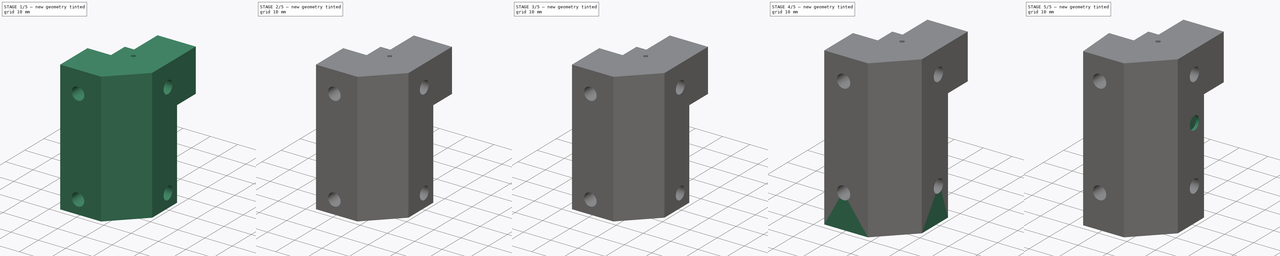
[diagram: build sequence overview — one tinted view per stage of 5, left to right]
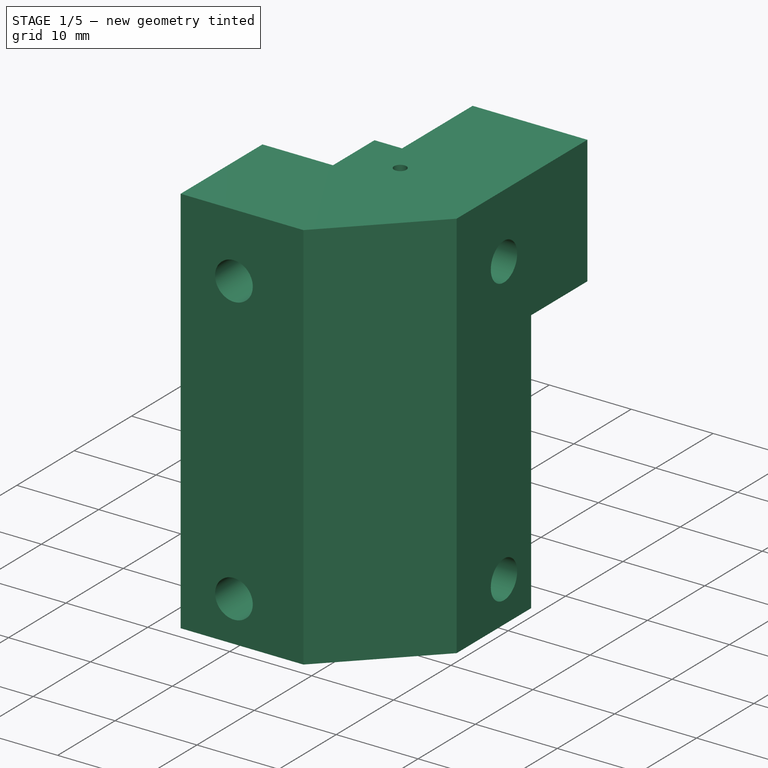
[diagram: stage 1 of 5 — iso view after this stage's code; geometry added in this stage tinted green]
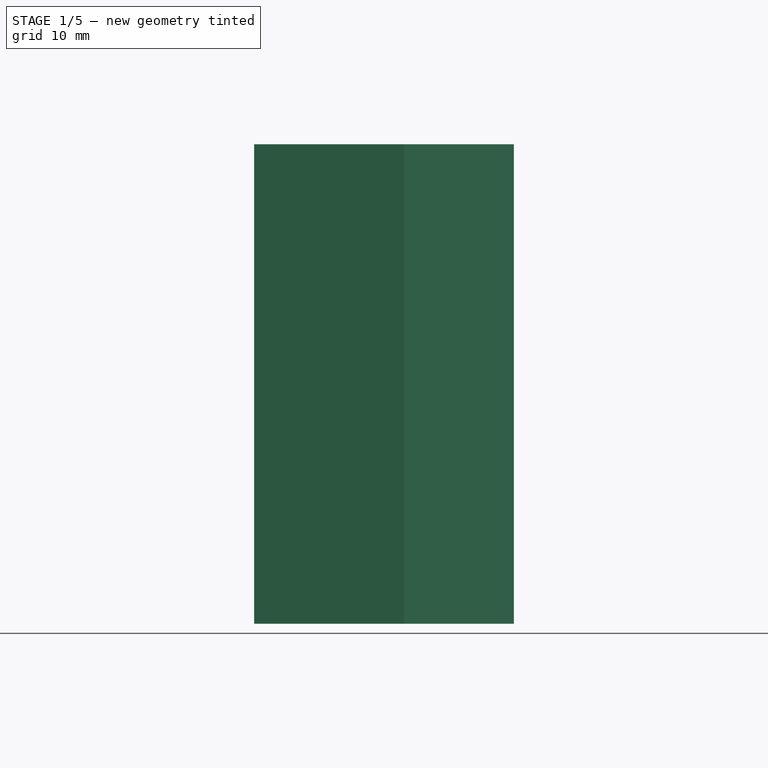
[diagram: stage 1 of 5 — front view after this stage's code; geometry added in this stage tinted green]
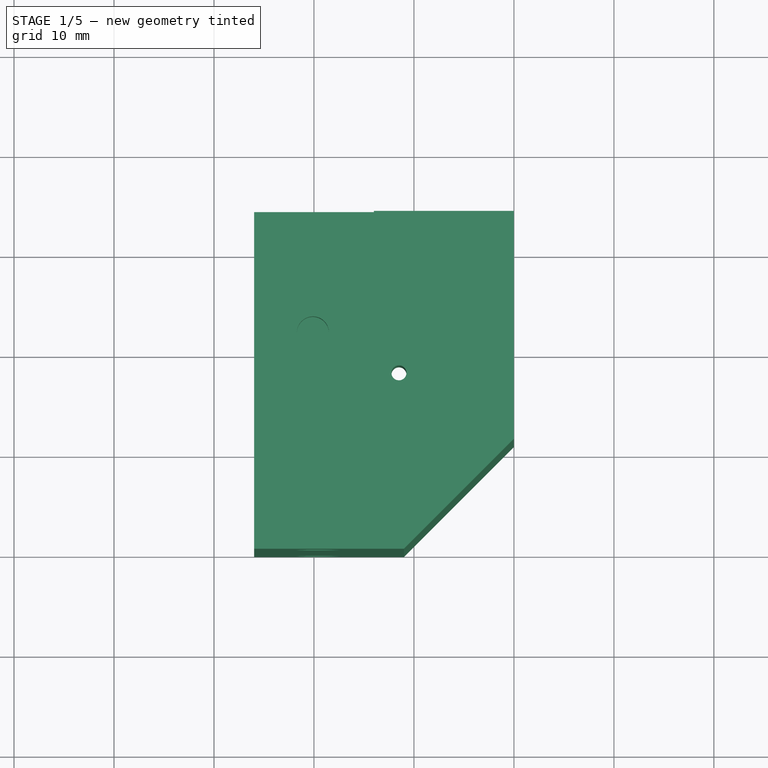
[diagram: stage 1 of 5 — top view after this stage's code; geometry added in this stage tinted green]
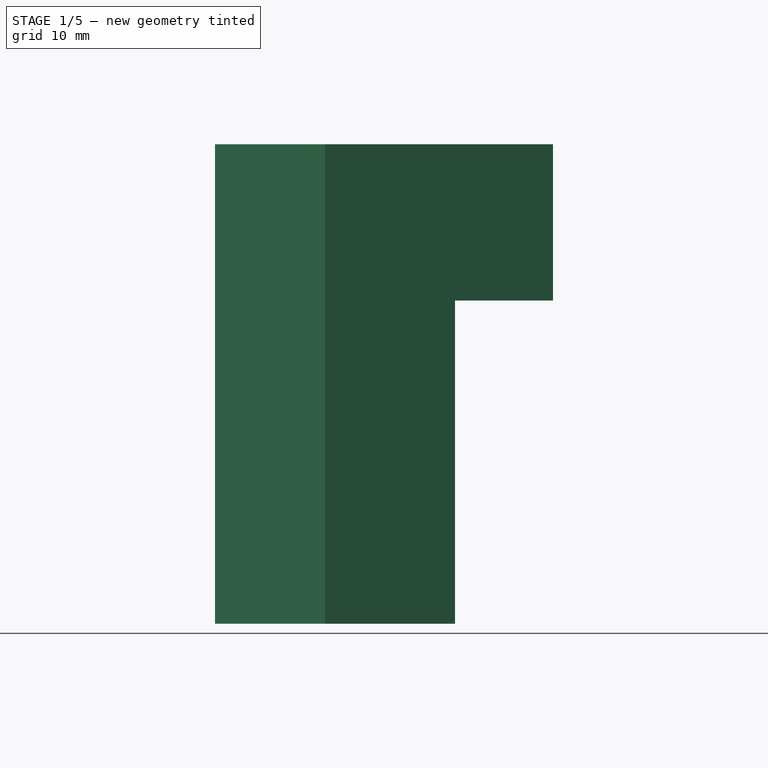
[diagram: stage 1 of 5 — right view after this stage's code; geometry added in this stage tinted green]
FCSTD DOCUMENT  (FreeCAD 1.0R38641 +468 (Git))
Label: k1_front_idler_right
License: All rights reserved
LicenseURL: https://en.wikipedia.org/wiki/All_rights_reserved
objects: PartDesign::Pad×11, PartDesign::Pocket×9, Sketcher::SketchObject×8, PartDesign::Line×2, App::Link×2, Part::Feature×1, PartDesign::FeatureBase×1, PartDesign::Body×1, App::Part×1
note: 82 computed .brp shape members not serialized (recipe doc carries the construction recipe); baked Part::Feature solids carry a one-line shape summary decoded from their .brp
EXTERNAL_REF file=cad_powge_pulley.FCStd obj=Part
EXTERNAL_REF file=cad_M4_DIN912_30mm.FCStd obj=Body

FEATURE [Part::Feature] Part__Feature  label="step"
  shape: bbox 25.99 x 33.8 x 47.95 mm, 40 faces (baked)
FEATURE [PartDesign::FeatureBase] BaseFeature
  BaseFeature = -> Part__Feature
  Suppressed = false
FEATURE [PartDesign::Line] HoleAxis_1  label="HoleAxis_frame"
  AttacherType = Attacher::AttachEngineLine
  AttachmentSupport = -> [BaseFeature]
  Length = 6.48171
  MapMode = 19
  Placement = pos=(-19.485,0,40.055) rot=(1,0,0;1.5708rad)
  ResizeMode = 1
FEATURE [Sketcher::SketchObject] Sketch
  ArcFitTolerance = 1e-06
  AttachmentSupport = -> [BaseFeature]
  ExternalGeometry = -> [BaseFeature]
  FullyConstrained = true
  MakeInternals = false
  MapMode = 5
  Placement = pos=(0,0,36) rot=(1,0,0;3.14159rad)
  sketch-geometry (1):
    g0: Circle CenterX=-11.5 CenterY=-17.6 CenterZ=0 NormalX=0 NormalY=0 NormalZ=1 AngleXU=0 Radius=0.75
  constraints (2):
    c: Coincident(g0,g-3)
    c: Diameter(g0) = 1.5
FEATURE [PartDesign::Pocket] Pocket
  BaseFeature = -> BaseFeature
  Direction = (0,0,1)
  Length = 5
  Length2 = 5
  Profile = -> Sketch
  ReferenceAxis = -> Sketch [N_Axis]
  Refine = true
  Suppressed = false
  Type = 1
FEATURE [PartDesign::Pocket] Pocket001
  BaseFeature = -> Pocket
  Direction = (0,0,-1)
  Length = 0.725
  Length2 = 5
  Profile = -> Pocket [Face18]
  Refine = true
  Suppressed = false
  Type = 0
FEATURE [PartDesign::Pad] Pad
  BaseFeature = -> Pocket001
  Direction = (0,0,-1)
  Length = 0.725
  Length2 = 10
  Profile = -> Pocket001 [Face34]
  Refine = true
  Suppressed = false
  Type = 0
FEATURE [PartDesign::Body] Body  label="k1_front_idler_right"
  AllowCompound = false
  BaseFeature = -> Part__Feature
  Group = -> [BaseFeature,HoleAxis_1,Sketch,Pocket,Pocket001,Pad,Pad001,Pocket002,Pad002,DatumLine,Pad003,Pad004,Pad005,Sketch001,Pocket003,Sketch002,Pocket004,Sketch003,Pocket005,Pad006,Sketch004,Pad007,Sketch005,Pad008,Pocket006,Pad009,Pad010,Sketch006,Pocket007,Sketch007,Pocket008]
  Origin = -> Origin
  Tip = -> Pocket008
FEATURE [App::Part] Part  label="k1_front_idler_right_part"
  Group = -> [Part__Feature,Body,Link,Link001]
  Origin = -> Origin001
  Placement = pos=(0,0,0) rot=(0,0,1;3.14159rad)

RESOLVED EXTERNAL PARTS (link-assembly join: the EXTERNAL_REF files above that resolve inside this repo's crawl, each included once):
---- part cad_M4_DIN912_30mm.FCStd = doc fcstd_a8421640b679 ----
FCSTD DOCUMENT  (FreeCAD 1.0R38641 +468 (Git))
Label: cad_M4_DIN912_30mm
License: All rights reserved
LicenseURL: https://en.wikipedia.org/wiki/All_rights_reserved
objects: Sketcher::SketchObject×2, PartDesign::Revolution×1, PartDesign::Pocket×1, PartDesign::Body×1
note: 11 computed .brp shape members not serialized (recipe doc carries the construction recipe); baked Part::Feature solids carry a one-line shape summary decoded from their .brp

FEATURE [Sketcher::SketchObject] Sketch
  ArcFitTolerance = 1e-06
  AttachmentSupport = -> [YZ_Plane]
  FullyConstrained = true
  MakeInternals = false
  MapMode = 5
  Placement = pos=(0,0,0) rot=(0.57735,0.57735,0.57735;2.0944rad)
  sketch-geometry (6):
    g0: LineSegment StartX=-3.5 StartY=4 StartZ=0 EndX=-3.5 EndY=0 EndZ=0
    g1: LineSegment StartX=-3.5 StartY=0 StartZ=0 EndX=0 EndY=0 EndZ=0
    g2: LineSegment StartX=-3.5 StartY=4 StartZ=0 EndX=-2 EndY=4 EndZ=0
    g3: LineSegment StartX=-2 StartY=4 StartZ=0 EndX=-2 EndY=34 EndZ=0
    g4: LineSegment StartX=-2 StartY=34 StartZ=0 EndX=0 EndY=34 EndZ=0
    g5: LineSegment StartX=0 StartY=34 StartZ=0 EndX=0 EndY=0 EndZ=0
  constraints (17):
    c: PointOnObject(g0,g-1)
    c: Vertical(g0)
    c: Coincident(g1,g0)
    c: Coincident(g2,g0)
    c: Horizontal(g2)
    c: Coincident(g3,g2)
    c: Vertical(g3)
    c: Coincident(g4,g3)
    c: Horizontal(g4)
    c: Distance(g0,g0) = 4
    c: Distance(g3,g3) = 30
    c: PointOnObject(g4,g-2)
    c: Coincident(g1,g-1)
    c: Distance(g1,g1) = 3.5
    c: Distance(g4,g4) = 2
    c: Coincident(g5,g4)
    c: Coincident(g5,g1)
FEATURE [PartDesign::Revolution] Revolution
  Angle = 360
  Angle2 = 60
  Axis = (0,0,1)
  Base = (0,0,0)
  Placement = pos=(0,0,0) rot=(1,1,1;2.0944rad)
  Profile = -> Sketch
  ReferenceAxis = -> Sketch [V_Axis]
  Refine = true
  Suppressed = false
  Type = 0
FEATURE [Sketcher::SketchObject] Sketch001
  ArcFitTolerance = 1e-06
  AttachmentSupport = -> [Revolution]
  FullyConstrained = true
  MakeInternals = false
  MapMode = 5
  Placement = pos=(0,0,8e-16) rot=(0.707107,0.707107,0;3.14159rad)
  sketch-geometry (7):
    g0: LineSegment StartX=0 StartY=2.5 StartZ=0 EndX=-2.16506 EndY=1.25 EndZ=0
    g1: LineSegment StartX=-2.16506 StartY=1.25 StartZ=0 EndX=-2.16506 EndY=-1.25 EndZ=0
    g2: LineSegment StartX=-2.16506 StartY=-1.25 StartZ=0 EndX=-6.3047e-12 EndY=-2.5 EndZ=0
    g3: LineSegment StartX=-6.3047e-12 StartY=-2.5 StartZ=0 EndX=2.16506 EndY=-1.25 EndZ=0
    g4: LineSegment StartX=2.16506 StartY=-1.25 StartZ=0 EndX=2.16506 EndY=1.25 EndZ=0
    g5: LineSegment StartX=2.16506 StartY=1.25 StartZ=0 EndX=0 EndY=2.5 EndZ=0
    g6: Circle [constr] CenterX=0 CenterY=0 CenterZ=0 NormalX=0 NormalY=0 NormalZ=1 AngleXU=0 Radius=2.5
  constraints (16):
    c: Coincident(g0,g1)
    c: Coincident(g1,g2)
    c: Coincident(g2,g3)
    c: Coincident(g3,g4)
    c: Coincident(g4,g5)
    c: Coincident(g5,g0)
    c: Equal(g0, g1-g5) x5
    c: PointOnObject(g0,g6)
    c: PointOnObject(g1,g6)
    c: PointOnObject(g2,g6)
    c: PointOnObject(g3,g6)
    c: PointOnObject(g4,g6)
    c: PointOnObject(g5,g6)
    c: Coincident(g6,g-1)
    c: PointOnObject(g5,g-2)
    c: Diameter(g6) = 5
FEATURE [PartDesign::Pocket] Pocket
  BaseFeature = -> Revolution
  Direction = (0,0,1)
  Length = 2
  Length2 = 5
  Placement = pos=(0,0,0) rot=(1,1,1;2.0944rad)
  Profile = -> Sketch001
  ReferenceAxis = -> Sketch001 [N_Axis]
  Refine = true
  Suppressed = false
  Type = 0
FEATURE [PartDesign::Body] Body  label="cad_M4_DIN912_30mm"
  AllowCompound = false
  Group = -> [Sketch,Revolution,Sketch001,Pocket]
  Origin = -> Origin
  Tip = -> Pocket
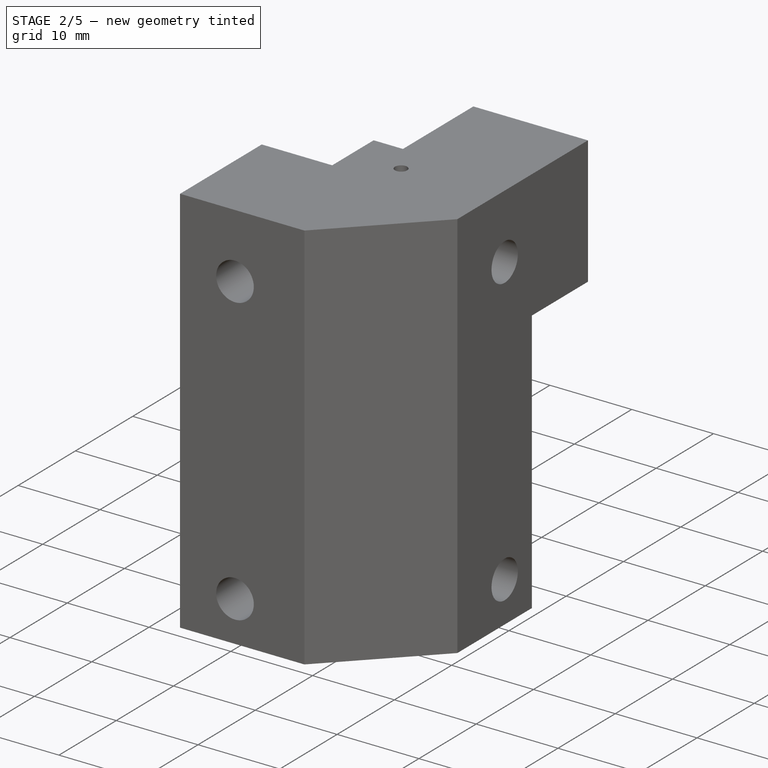
[diagram: stage 2 of 5 — iso view after this stage's code; geometry added in this stage tinted green]
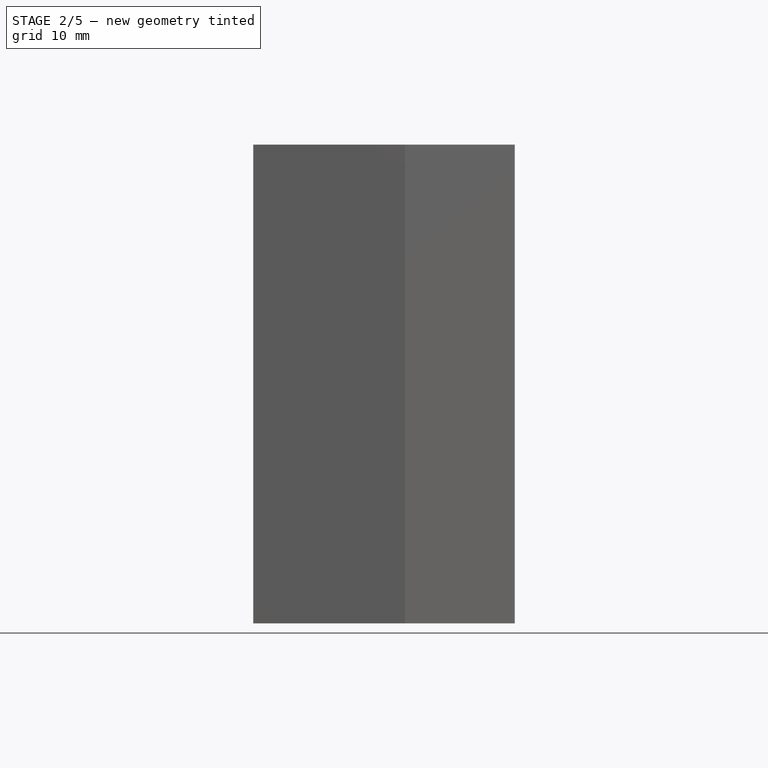
[diagram: stage 2 of 5 — front view after this stage's code; geometry added in this stage tinted green]
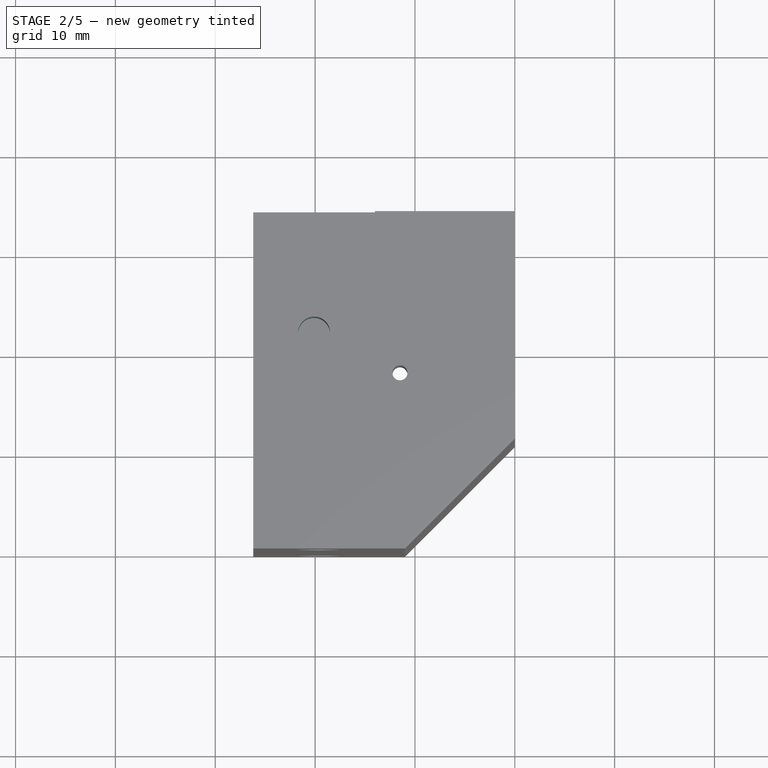
[diagram: stage 2 of 5 — top view after this stage's code; geometry added in this stage tinted green]
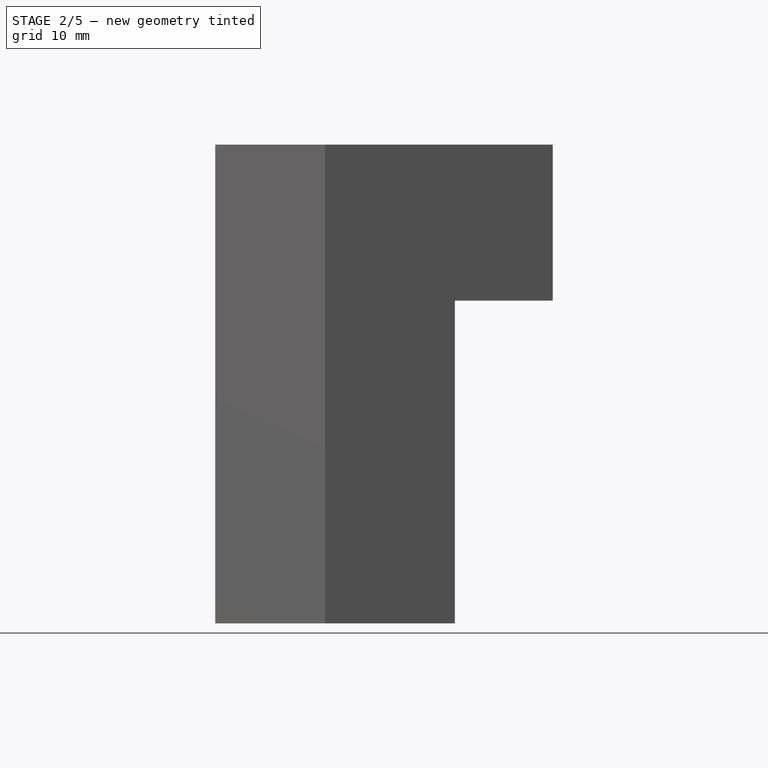
[diagram: stage 2 of 5 — right view after this stage's code; geometry added in this stage tinted green]
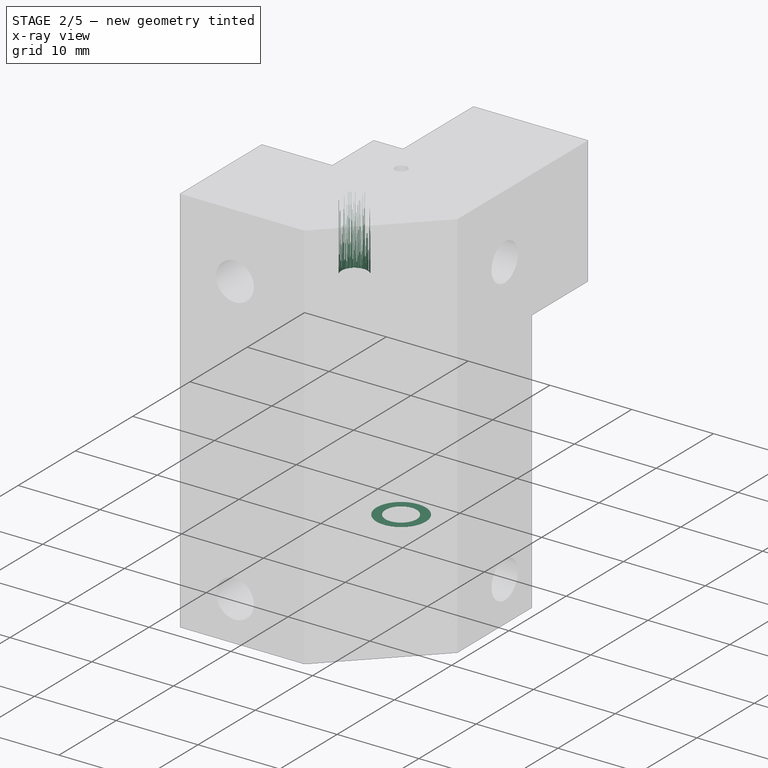
[diagram: stage 2 of 5 — x-ray composite at the iso view; earlier geometry ghosted, this stage's added geometry solid]
FEATURE [PartDesign::Pad] Pad001
  BaseFeature = -> Pad
  Direction = (0,0,-1)
  Length = 0.725
  Length2 = 10
  Profile = -> Pad [Face20]
  Refine = true
  Suppressed = false
  Type = 0
FEATURE [PartDesign::Pocket] Pocket002
  BaseFeature = -> Pad001
  Direction = (0,0,-1)
  Length = 0.725
  Length2 = 5
  Profile = -> Pad001 [Face29]
  Refine = true
  Suppressed = false
  Type = 0
FEATURE [PartDesign::Pad] Pad002
  BaseFeature = -> Pocket002
  Direction = (-1,0,0)
  Length = 0.21
  Length2 = 10
  Profile = -> Pocket002 [Face4]
  Refine = true
  Suppressed = false
  Type = 0
FEATURE [PartDesign::Line] DatumLine
  AttacherType = Attacher::AttachEngineLine
  AttachmentOffset = pos=(0,0.6,0) rot=(0,0,1;0rad)
  AttachmentSupport = -> [Pad002]
  Length = 20
  MapMode = 19
  Placement = pos=(-20.105,22.365,40.945) rot=(0,0,1;0rad)
  ResizeMode = 0
FEATURE [PartDesign::Pad] Pad003
  BaseFeature = -> Pad002
  Direction = (0,0,-1)
  Length = 10
  Length2 = 10
  Profile = -> Pad002 [Face37]
  Refine = true
  Suppressed = false
  Type = 3
  UpToFace = -> Pad002 [Face35]
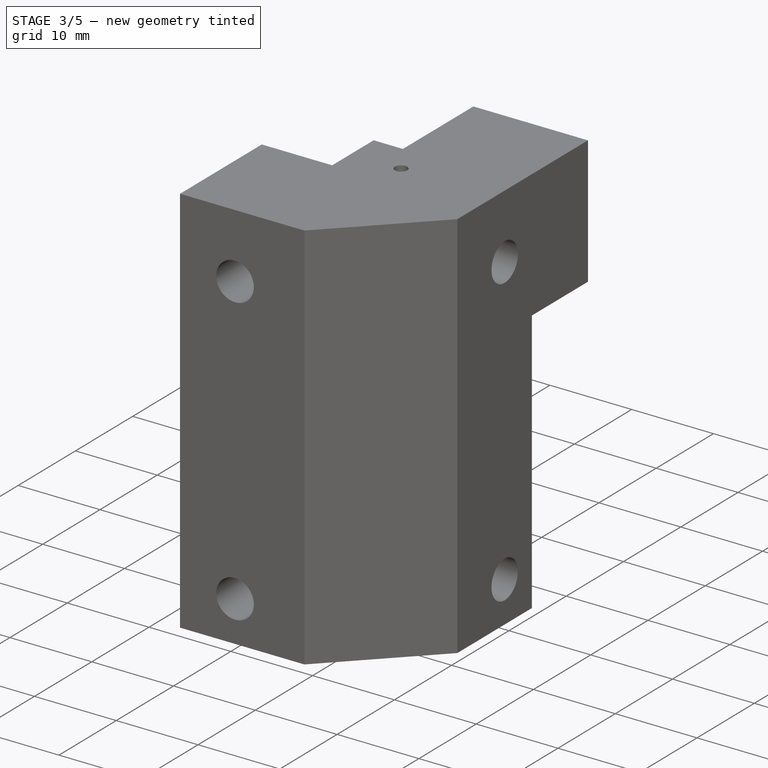
[diagram: stage 3 of 5 — iso view after this stage's code; geometry added in this stage tinted green]
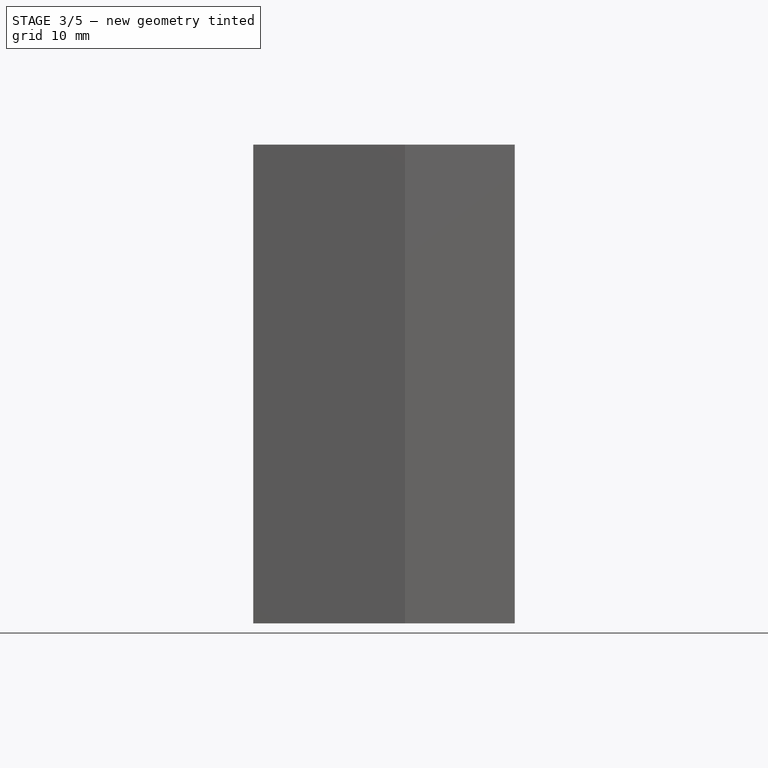
[diagram: stage 3 of 5 — front view after this stage's code; geometry added in this stage tinted green]
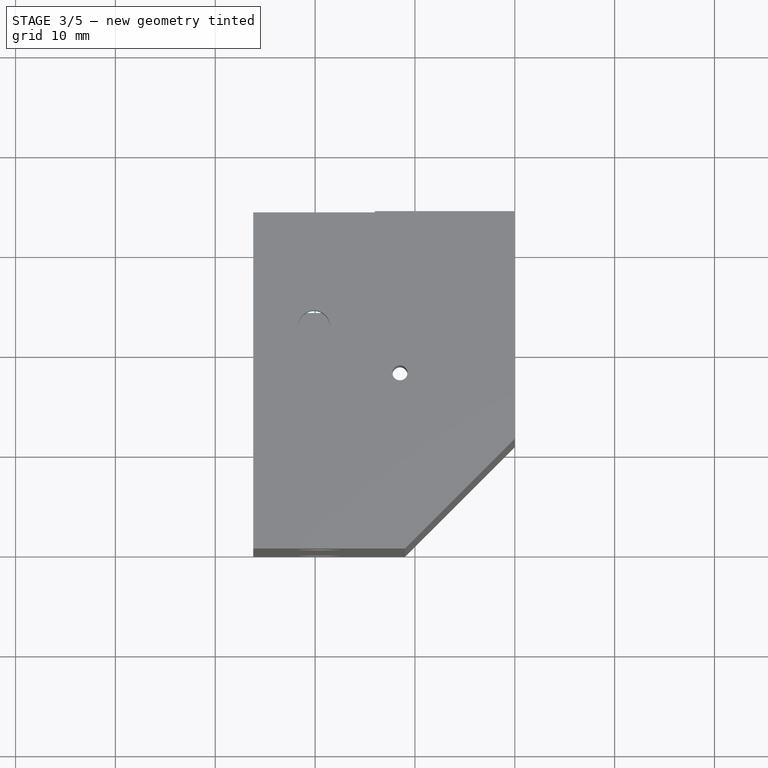
[diagram: stage 3 of 5 — top view after this stage's code; geometry added in this stage tinted green]
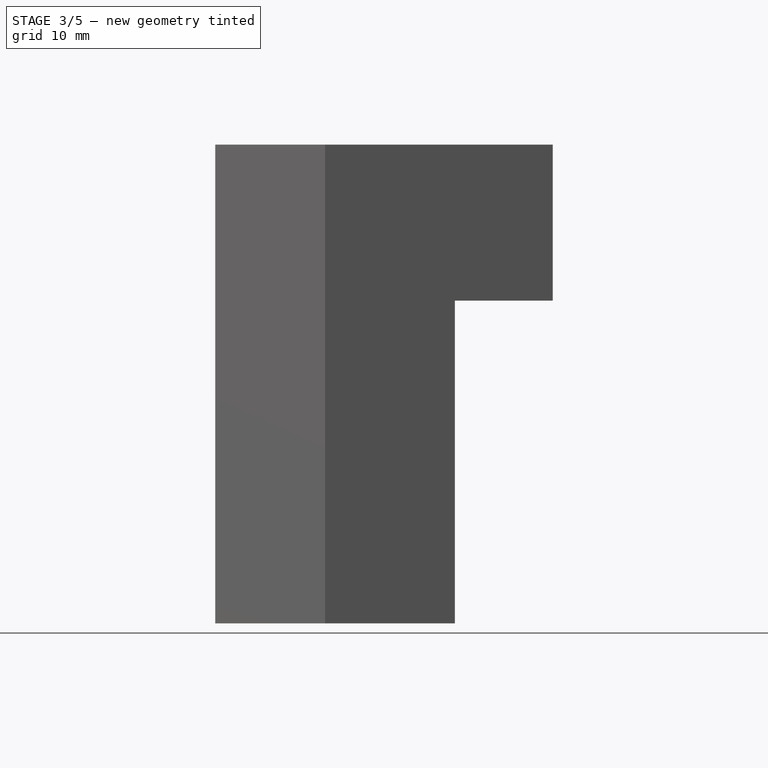
[diagram: stage 3 of 5 — right view after this stage's code; geometry added in this stage tinted green]
FEATURE [PartDesign::Pad] Pad004
  BaseFeature = -> Pad003
  Direction = (0,0,1)
  Length = 10
  Length2 = 10
  Profile = -> Pad003 [Edge84]
  Refine = true
  Suppressed = false
  Type = 3
  UpToFace = -> Pad003 [Face17]
FEATURE [PartDesign::Pad] Pad005
  BaseFeature = -> Pad004
  Direction = (0,0,1)
  Length = 10
  Length2 = 10
  Profile = -> Pad004 [Face20]
  Refine = true
  Suppressed = false
  Type = 3
  UpToFace = -> Pad004 [Face37]
FEATURE [Sketcher::SketchObject] Sketch001
  ArcFitTolerance = 1e-06
  AttachmentSupport = -> [Pad005]
  ExternalGeometry = -> [DatumLine]
  FullyConstrained = true
  MakeInternals = false
  MapMode = 5
  Placement = pos=(0,0,40.945) rot=(0,0,1;0rad)
  sketch-geometry (1):
    g0: Circle CenterX=-20.105 CenterY=22.365 CenterZ=0 NormalX=0 NormalY=0 NormalZ=1 AngleXU=0 Radius=1.6
  constraints (2):
    c: Coincident(g0,g-3)
    c: Diameter(g0) = 3.2
FEATURE [PartDesign::Pocket] Pocket003
  BaseFeature = -> Pad005
  Direction = (0,0,-1)
  Length = 0
  Length2 = 5
  Profile = -> Sketch001
  ReferenceAxis = -> Sketch001 [N_Axis]
  Refine = true
  Suppressed = false
  Type = 3
  UpToFace = -> Pad005 [Face18]
FEATURE [Sketcher::SketchObject] Sketch002
  ArcFitTolerance = 1e-06
  AttachmentSupport = -> [Pocket003]
  ExternalGeometry = -> [DatumLine]
  FullyConstrained = true
  MakeInternals = false
  MapMode = 5
  Placement = pos=(0,0,32.325) rot=(1,0,0;3.14159rad)
  sketch-geometry (1):
    g0: Circle CenterX=-20.105 CenterY=-22.365 CenterZ=0 NormalX=0 NormalY=0 NormalZ=1 AngleXU=0 Radius=2.3
  constraints (2):
    c: Coincident(g0,g-3)
    c: Diameter(g0) = 4.6
FEATURE [PartDesign::Pocket] Pocket004
  BaseFeature = -> Pocket003
  Direction = (0,0,1)
  Length = 5.1
  Length2 = 5
  Profile = -> Sketch002
  ReferenceAxis = -> Sketch002 [N_Axis]
  Refine = true
  Suppressed = false
  Type = 0
FEATURE [Sketcher::SketchObject] Sketch003
  ArcFitTolerance = 1e-06
  AttachmentSupport = -> [Pocket004]
  ExternalGeometry = -> [DatumLine,Pocket004]
  FullyConstrained = true
  MakeInternals = false
  MapMode = 5
  Placement = pos=(0,0,32.325) rot=(1,0,0;3.14159rad)
  sketch-geometry (4):
    g0: ArcOfCircle CenterX=-20.105 CenterY=-22.365 CenterZ=0 NormalX=0 NormalY=0 NormalZ=1 AngleXU=0 Radius=4 StartAngle=0 EndAngle=3.14159
    g1: LineSegment StartX=-16.105 StartY=-22.365 StartZ=0 EndX=-16.105 EndY=-24 EndZ=0
    g2: LineSegment StartX=-16.105 StartY=-24 StartZ=0 EndX=-24.105 EndY=-24 EndZ=0
    g3: LineSegment StartX=-24.105 StartY=-24 StartZ=0 EndX=-24.105 EndY=-22.365 EndZ=0
  constraints (10):
    c: Coincident(g0,g-3)
    c: PointOnObject(g1,g-4)
    c: Vertical(g1)
    c: Coincident(g2,g1)
    c: Horizontal(g2)
    c: Coincident(g3,g2)
    c: Vertical(g3)
    c: Radius(g0) = 4
    c: Tangent(g1,g0) = 1.5708
    c: Tangent(g3,g0) = 1.5708
FEATURE [PartDesign::Pocket] Pocket005
  BaseFeature = -> Pocket004
  Direction = (0,0,1)
  Length = 8
  Length2 = 5
  Profile = -> Sketch003
  ReferenceAxis = -> Sketch003 [N_Axis]
  Refine = true
  Reversed = true
  Suppressed = false
  Type = 0
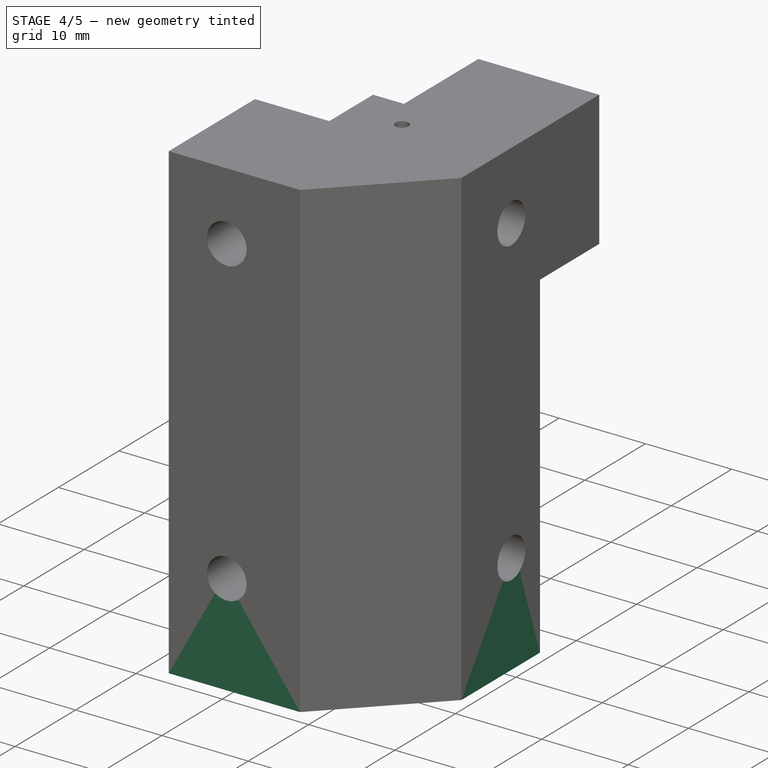
[diagram: stage 4 of 5 — iso view after this stage's code; geometry added in this stage tinted green]
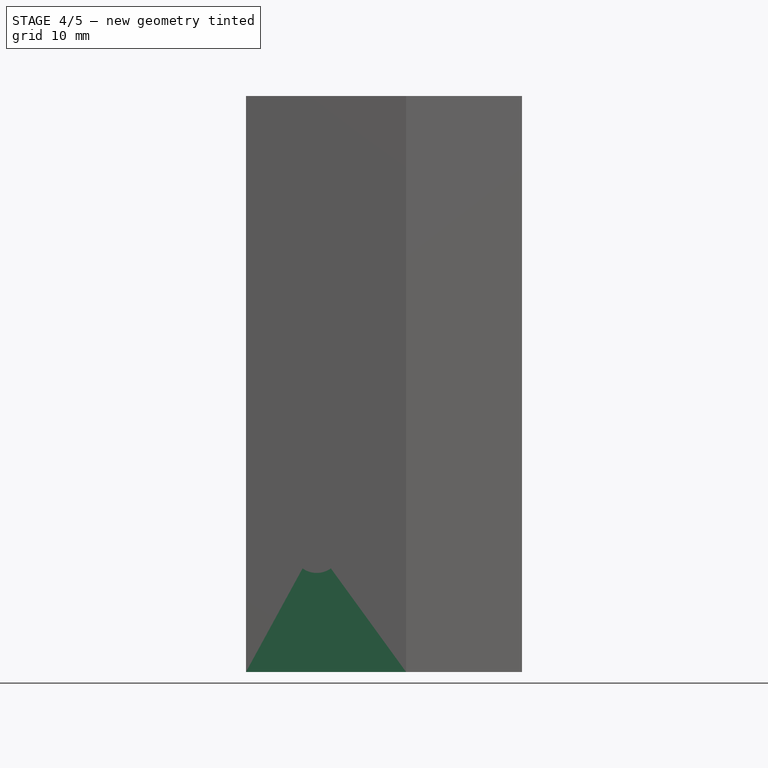
[diagram: stage 4 of 5 — front view after this stage's code; geometry added in this stage tinted green]
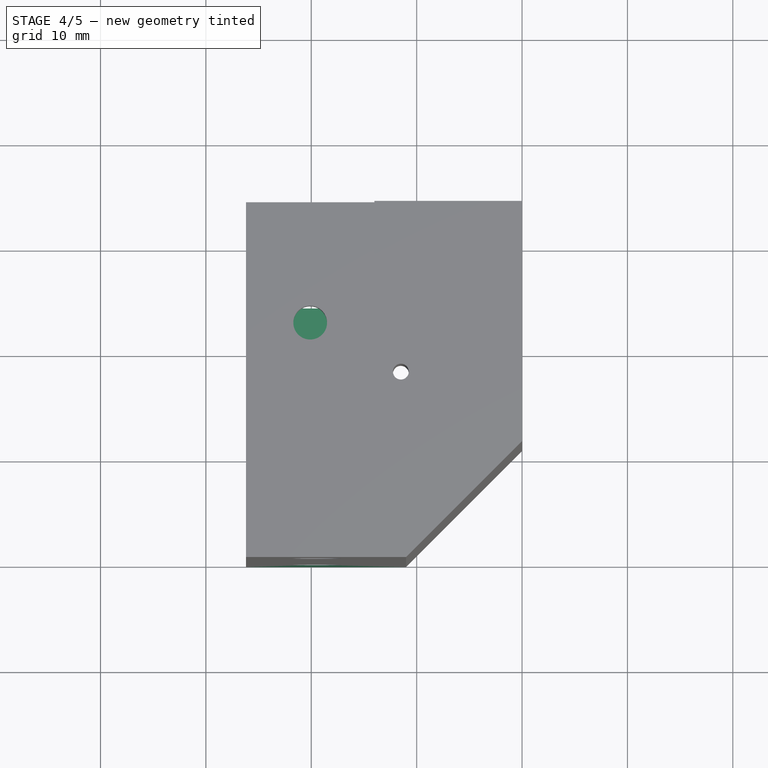
[diagram: stage 4 of 5 — top view after this stage's code; geometry added in this stage tinted green]
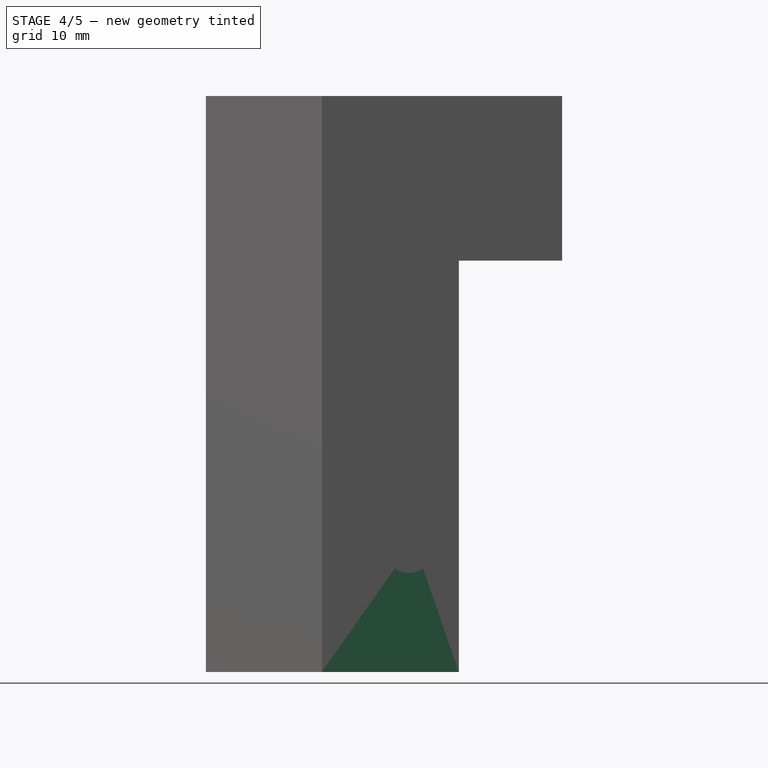
[diagram: stage 4 of 5 — right view after this stage's code; geometry added in this stage tinted green]
FEATURE [PartDesign::Pad] Pad006
  BaseFeature = -> Pocket005
  Direction = (0,0,-1)
  Length = 6.72
  Length2 = 10
  Profile = -> Pocket005 [Face12]
  Refine = true
  Suppressed = false
  Type = 0
FEATURE [Sketcher::SketchObject] Sketch004
  ArcFitTolerance = 1e-06
  AttachmentSupport = -> [Pad006]
  ExternalGeometry = -> [Pad006]
  FullyConstrained = true
  MakeInternals = false
  MapMode = 5
  Placement = pos=(0,0,0.2) rot=(1,0,0;3.14159rad)
  sketch-geometry (2):
    g0: Circle CenterX=-11.5 CenterY=-17.6 CenterZ=0 NormalX=0 NormalY=0 NormalZ=1 AngleXU=0 Radius=4.5
    g1: Circle CenterX=-11.5 CenterY=-17.6 CenterZ=0 NormalX=0 NormalY=0 NormalZ=1 AngleXU=0 Radius=1.9
  constraints (4):
    c: Coincident(g0,g-3)
    c: Equal(g0,g-3)
    c: Coincident(g1,g0)
    c: Diameter(g1) = 3.8
FEATURE [PartDesign::Pad] Pad007
  BaseFeature = -> Pad006
  Direction = (0,0,-1)
  Length = 5
  Length2 = 10
  Profile = -> Sketch004
  ReferenceAxis = -> Sketch004 [N_Axis]
  Refine = true
  Reversed = true
  Suppressed = false
  Type = 0
FEATURE [Sketcher::SketchObject] Sketch005
  ArcFitTolerance = 1e-06
  AttachmentSupport = -> [Pad007]
  ExternalGeometry = -> [Pad007]
  FullyConstrained = true
  MakeInternals = false
  MapMode = 5
  Placement = pos=(0,0,0.2) rot=(1,0,0;3.14159rad)
  sketch-geometry (2):
    g0: Circle CenterX=-11.5 CenterY=-17.6 CenterZ=0 NormalX=0 NormalY=0 NormalZ=1 AngleXU=0 Radius=4.5
    g1: Circle CenterX=-11.5 CenterY=-17.6 CenterZ=0 NormalX=0 NormalY=0 NormalZ=1 AngleXU=0 Radius=3.6
  constraints (4):
    c: Coincident(g0,g-3)
    c: Equal(g0,g-3)
    c: Coincident(g1,g0)
    c: Diameter(g1) = 7.2
FEATURE [PartDesign::Pad] Pad008
  BaseFeature = -> Pad007
  Direction = (0,0,-1)
  Length = 10
  Length2 = 10
  Profile = -> Sketch005
  ReferenceAxis = -> Sketch005 [N_Axis]
  Refine = true
  Suppressed = false
  Type = 3
  UpToFace = -> Pad007 [Face1]
FEATURE [PartDesign::Pocket] Pocket006
  BaseFeature = -> Pad008
  Direction = (0,0,-1)
  Length = 0.3
  Length2 = 5
  Profile = -> Pad008 [Face14]
  Refine = true
  Suppressed = false
  Type = 0
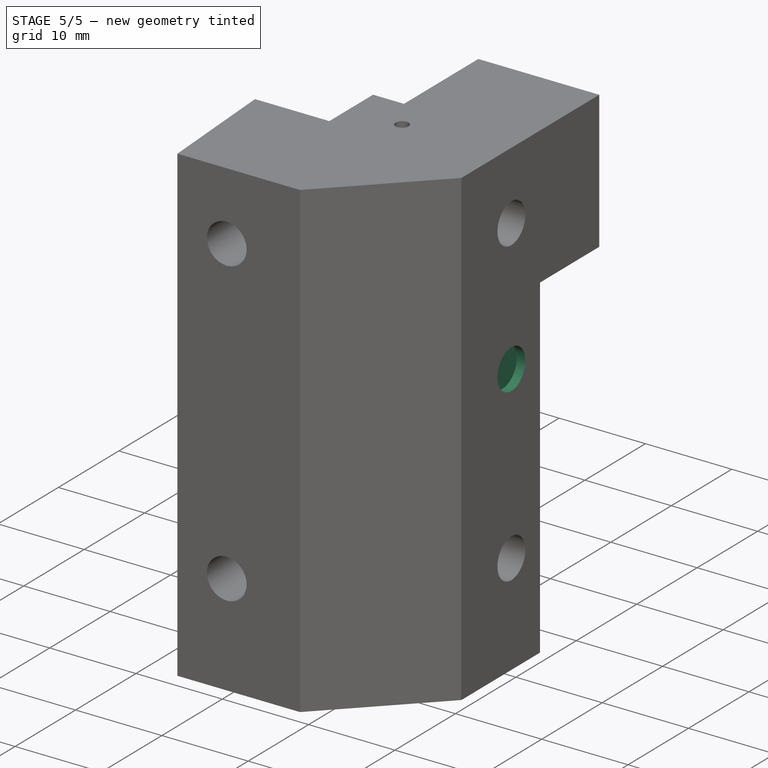
[diagram: stage 5 of 5 — iso view after this stage's code; geometry added in this stage tinted green]
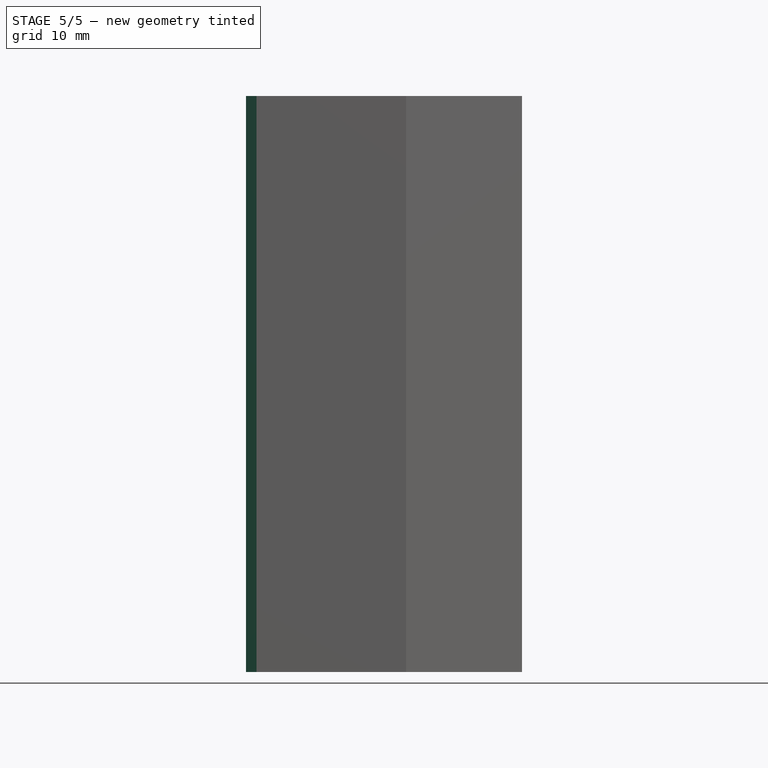
[diagram: stage 5 of 5 — front view after this stage's code; geometry added in this stage tinted green]
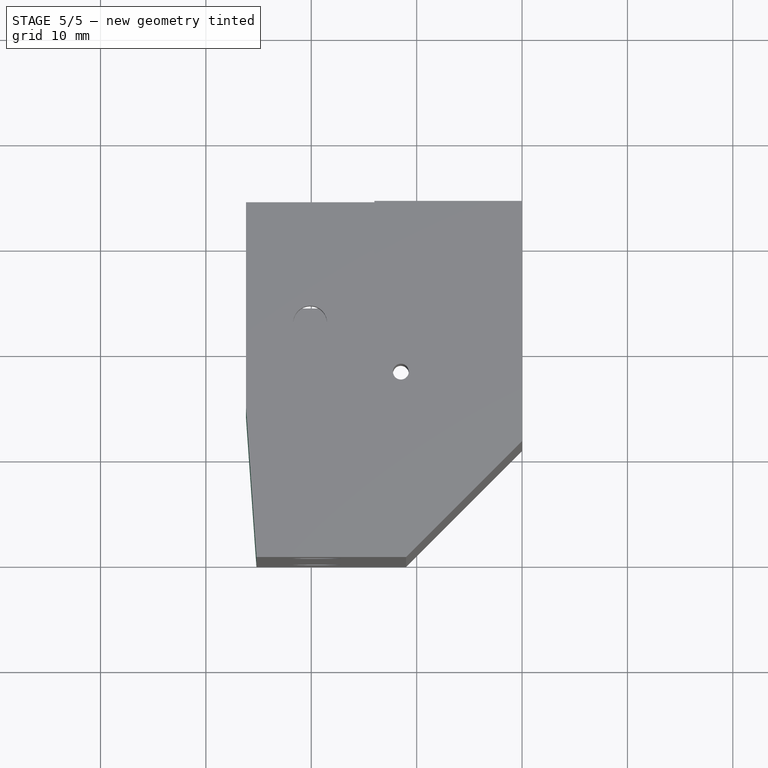
[diagram: stage 5 of 5 — top view after this stage's code; geometry added in this stage tinted green]
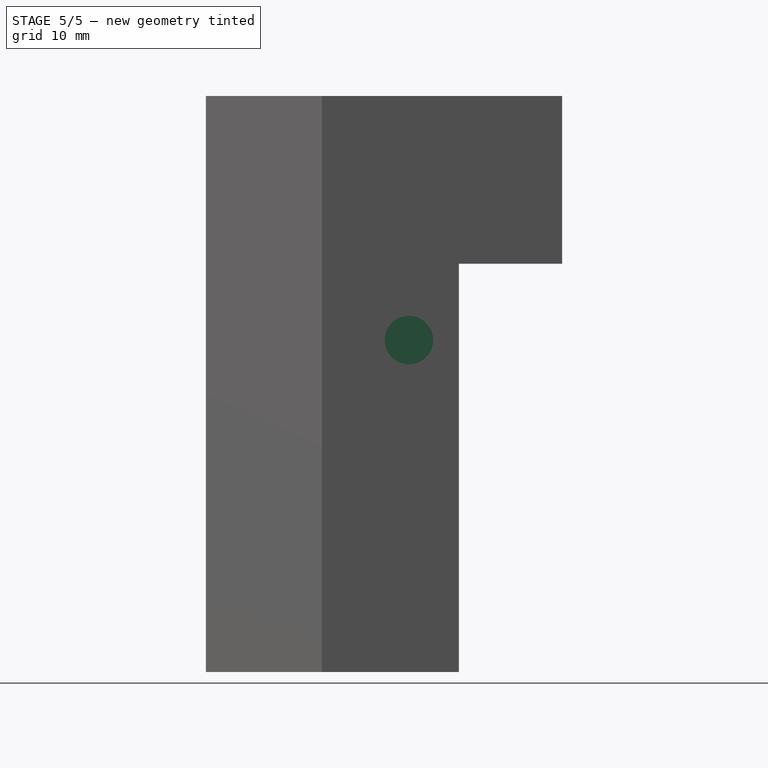
[diagram: stage 5 of 5 — right view after this stage's code; geometry added in this stage tinted green]
FEATURE [PartDesign::Pad] Pad009
  BaseFeature = -> Pocket006
  Direction = (0,0,-1)
  Length = 0.3
  Length2 = 10
  Profile = -> Pocket006 [Face11]
  Refine = true
  Suppressed = false
  Type = 0
FEATURE [PartDesign::Pad] Pad010
  BaseFeature = -> Pad009
  Direction = (0,0,-1)
  Length = 0.3
  Length2 = 10
  Profile = -> Pad009 [Face32]
  Refine = true
  Suppressed = false
  Type = 0
FEATURE [App::Link] Link  label="cad_powge_pulley_link"
  LinkPlacement = pos=(-11.5,17.6,9.7) rot=(0,0,1;0rad)
  LinkedObject = -> <external cad_powge_pulley.FCStd>#Part
  Placement = pos=(-11.5,17.6,9.7) rot=(0,0,1;0rad)
FEATURE [Sketcher::SketchObject] Sketch006
  ArcFitTolerance = 1e-06
  AttachmentSupport = -> [Pad010]
  ExternalGeometry = -> [Pad010]
  FullyConstrained = true
  MakeInternals = false
  MapMode = 5
  Placement = pos=(0,0,47.945) rot=(0,0,1;0rad)
  sketch-geometry (3):
    g0: LineSegment StartX=-26.2 StartY=0 StartZ=0 EndX=-25.2 EndY=0 EndZ=0
    g1: LineSegment StartX=-26.2 StartY=0 StartZ=0 EndX=-26.2 EndY=14.265 EndZ=0
    g2: LineSegment StartX=-26.2 StartY=14.265 StartZ=0 EndX=-25.2 EndY=0 EndZ=0
  constraints (7):
    c: Coincident(g0,g-3)
    c: PointOnObject(g0,g-1)
    c: Coincident(g1,g0)
    c: Coincident(g1,g-3)
    c: Coincident(g2,g1)
    c: Coincident(g2,g0)
    c: Distance(g0,g0) = 1
FEATURE [PartDesign::Pocket] Pocket007
  BaseFeature = -> Pad010
  Direction = (0,0,-1)
  Length = 5
  Length2 = 5
  Profile = -> Sketch006
  ReferenceAxis = -> Sketch006 [N_Axis]
  Refine = true
  Suppressed = false
  Type = 1
FEATURE [App::Link] Link001  label="cad_m4_din912_30_link"
  LinkPlacement = pos=(-11.5,17.6,-3.8) rot=(0,0,1;0rad)
  LinkedObject = -> <external cad_M4_DIN912_30mm.FCStd>#Body
  Placement = pos=(-11.5,17.6,-3.8) rot=(0,0,1;0rad)
FEATURE [Sketcher::SketchObject] Sketch007
  ArcFitTolerance = 1e-06
  AttachmentSupport = -> [Pocket007]
  ExternalGeometry = -> [Pocket007]
  FullyConstrained = true
  MakeInternals = false
  MapMode = 5
  Placement = pos=(0,0,0) rot=(0.57735,0.57735,0.57735;2.0944rad)
  sketch-geometry (2):
    g0: LineSegment [constr] StartX=19.265 StartY=40.055 StartZ=0 EndX=19.265 EndY=4.985 EndZ=0
    g1: Circle CenterX=19.265 CenterY=24.78 CenterZ=0 NormalX=0 NormalY=0 NormalZ=1 AngleXU=0 Radius=2.3
  constraints (5):
    c: Coincident(g0,g-3)
    c: Coincident(g0,g-4)
    c: PointOnObject(g1,g0)
    c: Equal(g1,g-3)
    c: Distance(g1,g-5) = 31.5
FEATURE [PartDesign::Pocket] Pocket008
  BaseFeature = -> Pocket007
  Direction = (-1,0,0)
  Length = 1
  Length2 = 5
  Profile = -> Sketch007
  ReferenceAxis = -> Sketch007 [N_Axis]
  Refine = true
  Suppressed = false
  Type = 0
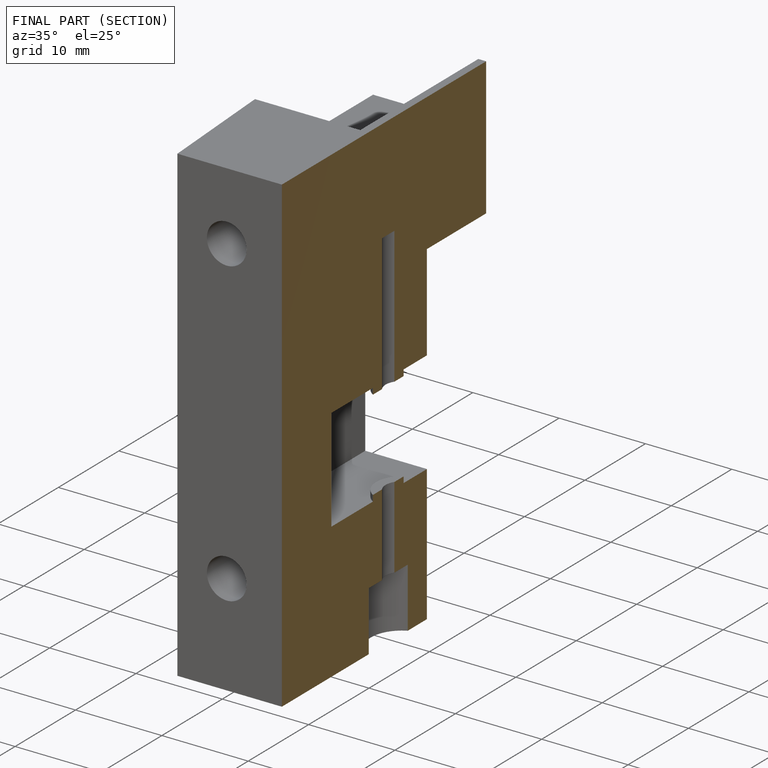
[diagram: finished part — half-section view (interior)]
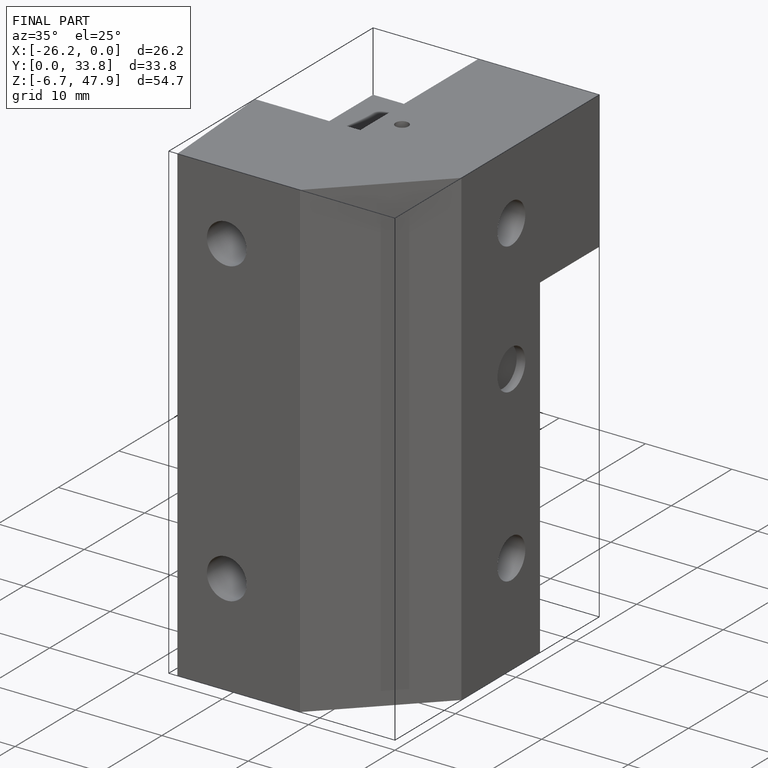
[diagram: finished part — iso view with bounding-box wireframe]
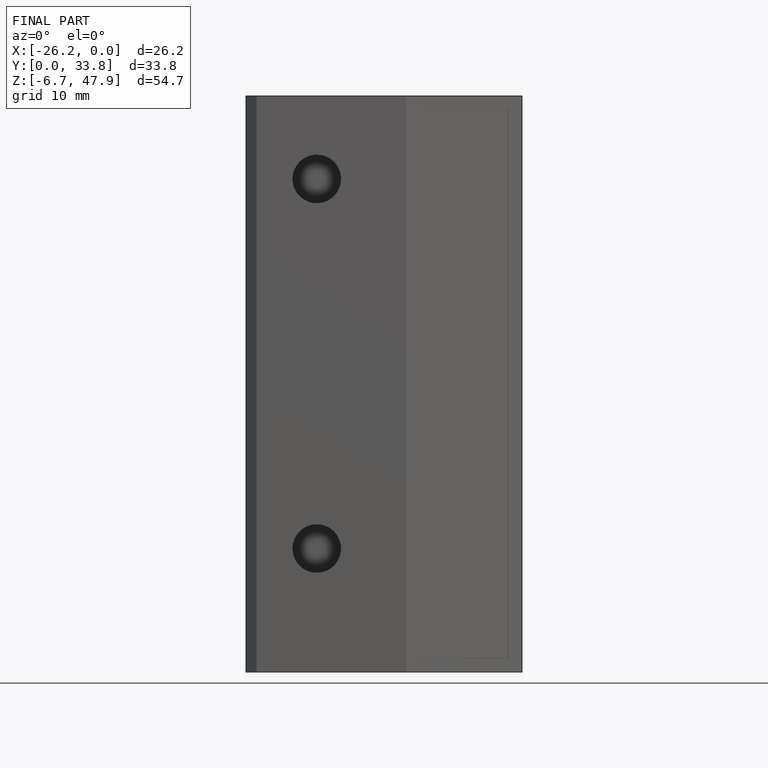
[diagram: finished part — front view with bounding-box wireframe]
